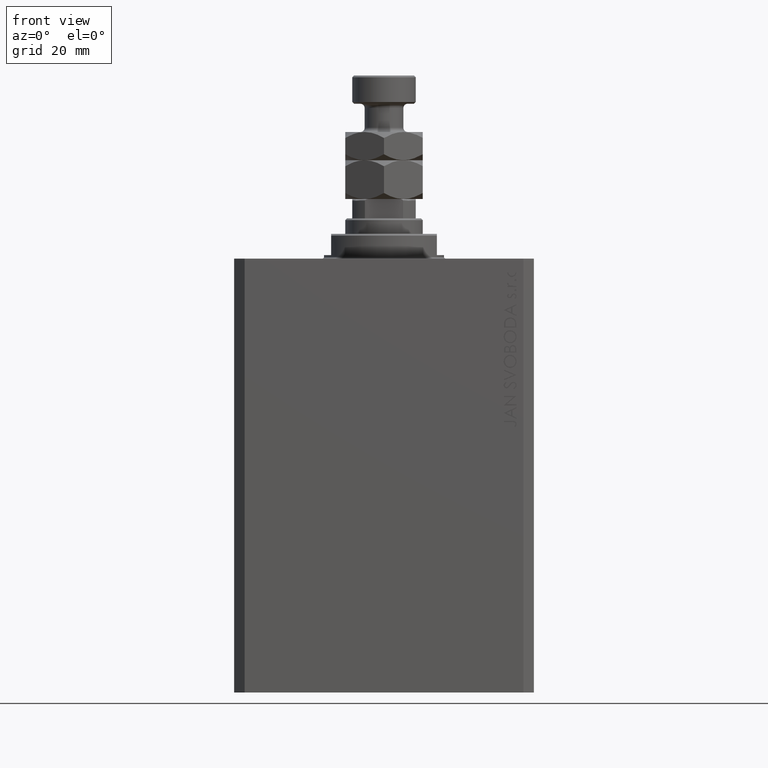
[diagram: clean part render]
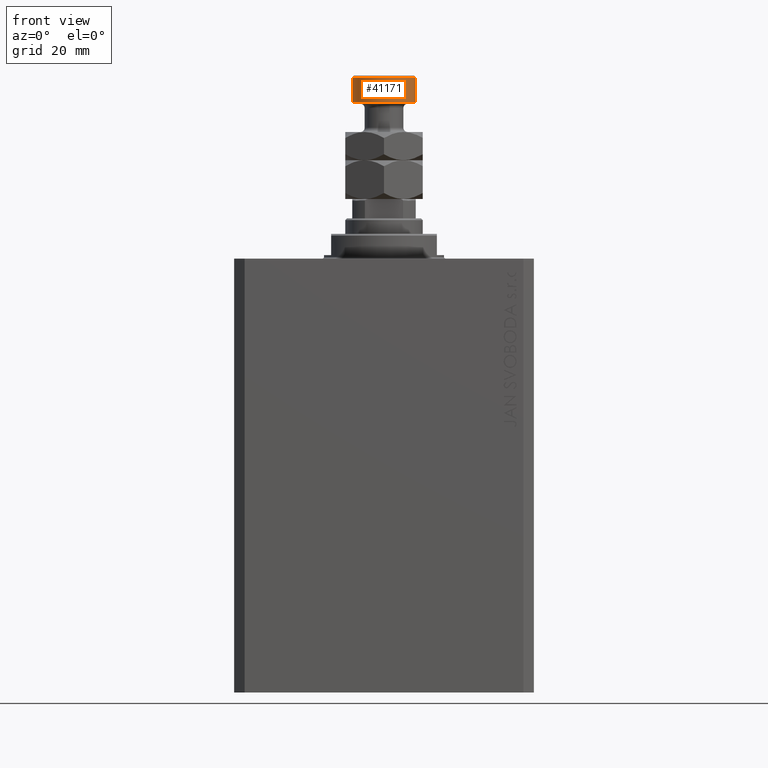
[diagram: same view with one face highlighted and labeled with its STEP entity id]
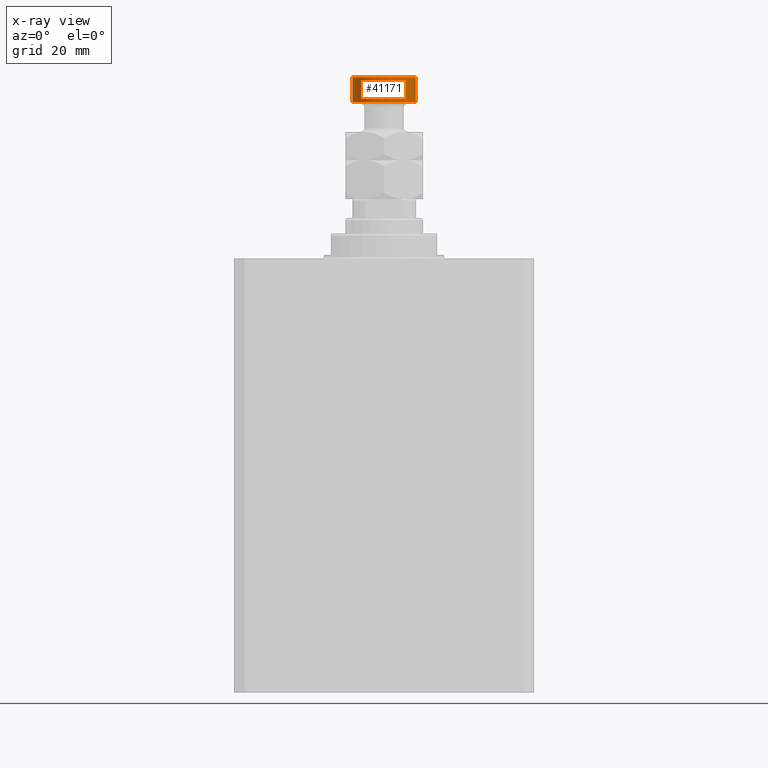
[diagram: x-ray of the same camera — body ghosted, the highlighted face saturated]
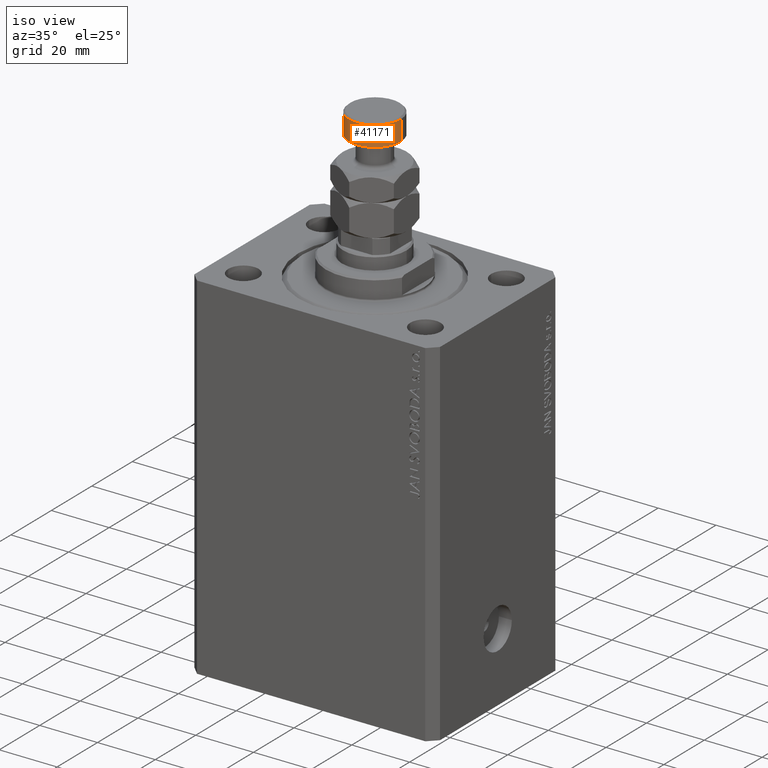
[diagram: same view with one face highlighted and labeled with its STEP entity id]
A machine part, front view. The second image highlights one B-rep face of the part: STEP entity #41171.
The next image is the same camera in x-ray: the body ghosted, the highlighted face saturated — about 0% of this face is hidden behind the body in this view.
A second angle (iso view) of the same face is appended — the face is thin or edge-on in the first view.
In plain terms, the highlighted cylindrical surface (edge-blend (fillet) strip) has radius 9 mm, axis along (-0, -0, -1).
Its self-contained STEP definition (entity closure, byte-faithful):
#1763 = CARTESIAN_POINT ( 'NONE',  ( 0.000000000000000000, 0.000000000000000000, 35.00000000000000000 ) ) ;
#6351 = ORIENTED_EDGE ( 'NONE', *, *, #40621, .T. ) ;
#6980 = EDGE_CURVE ( 'NONE', #28680, #35827, #33844, .T. ) ;
#8849 = EDGE_LOOP ( 'NONE', ( #12017, #6351, #41528, #17189 ) ) ;
#9359 = DIRECTION ( 'NONE',  ( 1.000000000000000000, 0.000000000000000000, 0.000000000000000000 ) ) ;
#11497 = DIRECTION ( 'NONE',  ( -0.000000000000000000, -0.000000000000000000, -1.000000000000000000 ) ) ;
#12017 = ORIENTED_EDGE ( 'NONE', *, *, #48860, .F. ) ;
#14568 = DIRECTION ( 'NONE',  ( -0.000000000000000000, -0.000000000000000000, -1.000000000000000000 ) ) ;
#14686 = AXIS2_PLACEMENT_3D ( 'NONE', #14981, #30115, #30607 ) ;
#14981 = CARTESIAN_POINT ( 'NONE',  ( 0.000000000000000000, 0.000000000000000000, 34.49999999999999289 ) ) ;
#17189 = ORIENTED_EDGE ( 'NONE', *, *, #34371, .T. ) ;
#18296 = CARTESIAN_POINT ( 'NONE',  ( 9.000000000000000000, 1.102182119232617714E-15, 34.49999999999999289 ) ) ;
#21228 = CARTESIAN_POINT ( 'NONE',  ( -9.000000000000000000, 0.000000000000000000, 34.49999999999999289 ) ) ;
#22891 = CARTESIAN_POINT ( 'NONE',  ( -9.000000000000000000, 0.000000000000000000, 35.00000000000000000 ) ) ;
#23519 = VECTOR ( 'NONE', #14568, 1000.000000000000000 ) ;
#24160 = AXIS2_PLACEMENT_3D ( 'NONE', #1763, #32022, #31042 ) ;
#26323 = AXIS2_PLACEMENT_3D ( 'NONE', #35643, #43326, #9359 ) ;
#28680 = VERTEX_POINT ( 'NONE', #21228 ) ;
#28704 = CIRCLE ( 'NONE', #26323, 9.000000000000000000 ) ;
#30115 = DIRECTION ( 'NONE',  ( 0.000000000000000000, 0.000000000000000000, -1.000000000000000000 ) ) ;
#30607 = DIRECTION ( 'NONE',  ( 1.000000000000000000, 0.000000000000000000, 0.000000000000000000 ) ) ;
#31042 = DIRECTION ( 'NONE',  ( -1.000000000000000000, 0.000000000000000000, 0.000000000000000000 ) ) ;
#32022 = DIRECTION ( 'NONE',  ( -0.000000000000000000, -0.000000000000000000, -1.000000000000000000 ) ) ;
#33183 = CARTESIAN_POINT ( 'NONE',  ( 9.000000000000000000, 1.102182119232617714E-15, 35.00000000000000000 ) ) ;
#33844 = LINE ( 'NONE', #22891, #37429 ) ;
#34371 = EDGE_CURVE ( 'NONE', #35827, #35924, #28704, .T. ) ;
#35643 = CARTESIAN_POINT ( 'NONE',  ( 0.000000000000000000, 0.000000000000000000, 27.50000000000000000 ) ) ;
#35827 = VERTEX_POINT ( 'NONE', #44510 ) ;
#35924 = VERTEX_POINT ( 'NONE', #40311 ) ;
#37429 = VECTOR ( 'NONE', #11497, 1000.000000000000000 ) ;
#40098 = VERTEX_POINT ( 'NONE', #18296 ) ;
#40311 = CARTESIAN_POINT ( 'NONE',  ( 9.000000000000000000, 1.102182119232617714E-15, 27.50000000000000000 ) ) ;
#40621 = EDGE_CURVE ( 'NONE', #40098, #28680, #41614, .T. ) ;
#41171 = ADVANCED_FACE ( 'NONE', ( #42675 ), #46861, .T. ) ;
#41528 = ORIENTED_EDGE ( 'NONE', *, *, #6980, .T. ) ;
#41614 = CIRCLE ( 'NONE', #14686, 9.000000000000000000 ) ;
#42675 = FACE_OUTER_BOUND ( 'NONE', #8849, .T. ) ;
#43326 = DIRECTION ( 'NONE',  ( -0.000000000000000000, -0.000000000000000000, 1.000000000000000000 ) ) ;
#44510 = CARTESIAN_POINT ( 'NONE',  ( -9.000000000000000000, 0.000000000000000000, 27.50000000000000000 ) ) ;
#44812 = LINE ( 'NONE', #33183, #23519 ) ;
#46861 = CYLINDRICAL_SURFACE ( 'NONE', #24160, 9.000000000000000000 ) ;
#48860 = EDGE_CURVE ( 'NONE', #40098, #35924, #44812, .T. ) ;